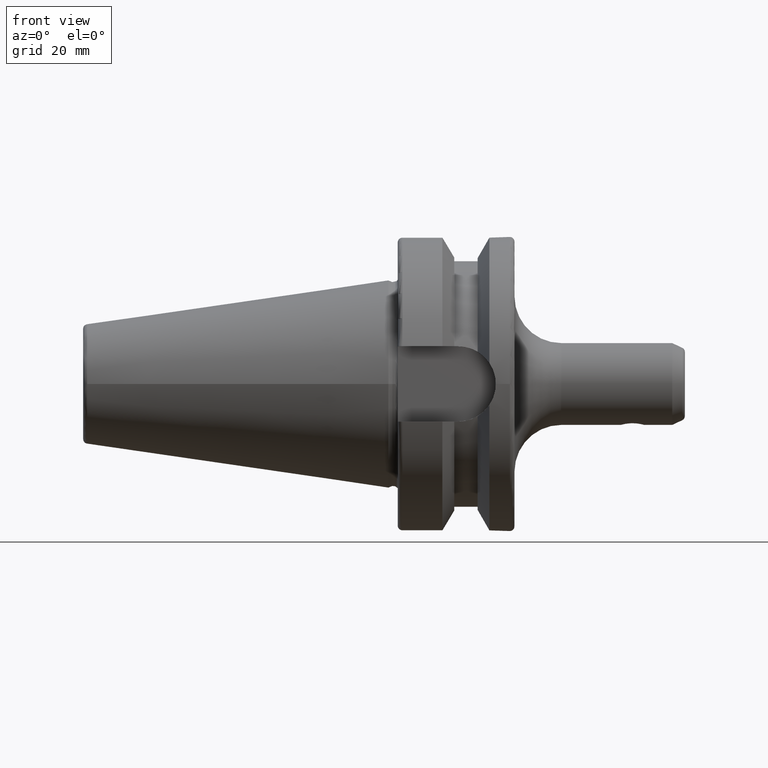
[diagram: clean part render]
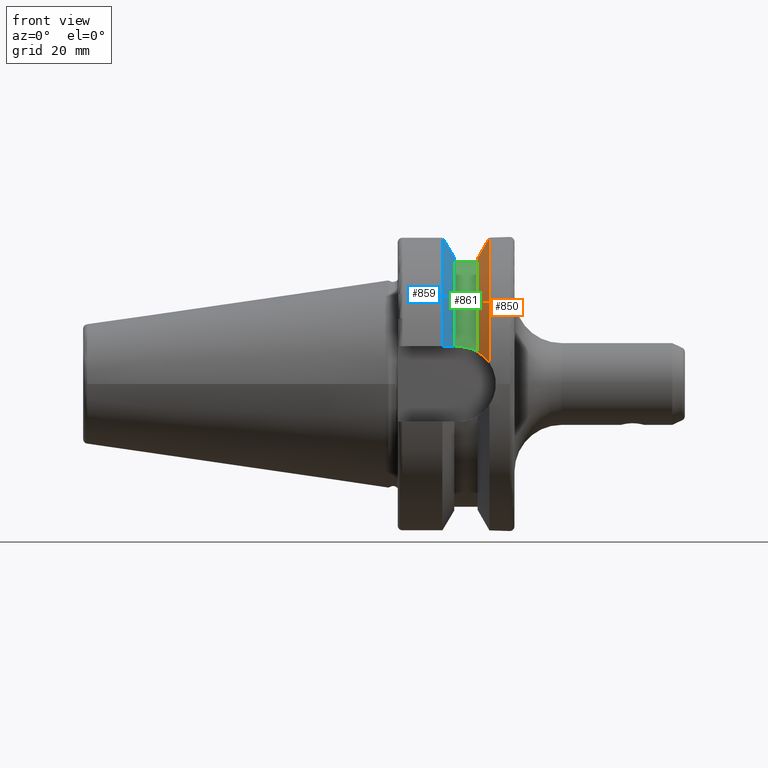
[diagram: same view with three faces highlighted in distinct colors, each labeled with its STEP entity id]
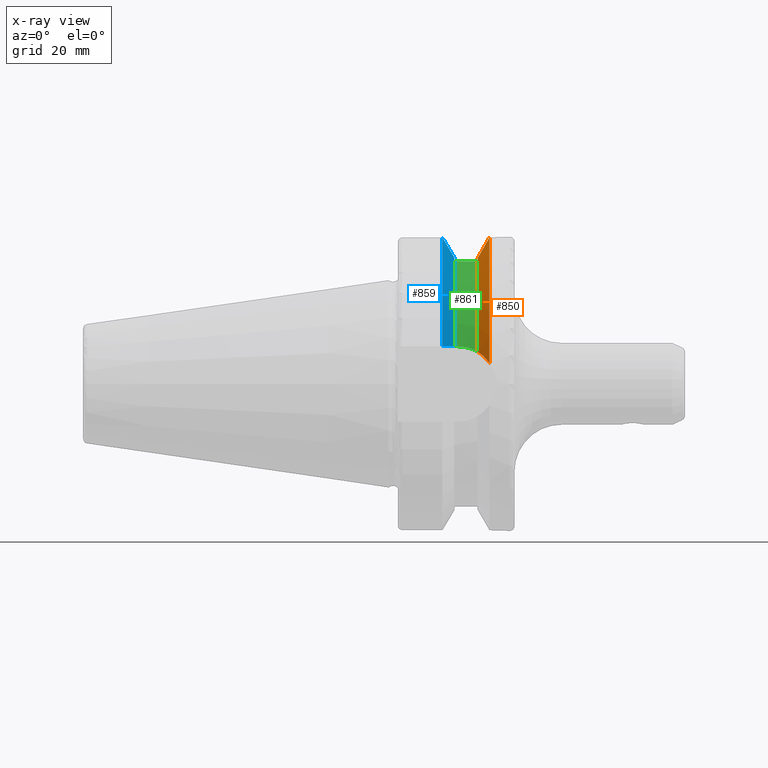
[diagram: x-ray of the same camera — body ghosted, the three highlighted faces saturated]
A machine part, front view with three faces highlighted in distinct colors.
The next image is the same camera in x-ray (body ghosted, the three faces saturated) — at least one of them is partly hidden behind the body in this view.
Their STEP definitions:

[orange] entity #850 — the highlighted conical surface has half-angle 60.125 deg.
#40=CONICAL_SURFACE('',#954,29.2970358274569,1.0493792127616);
#81=CIRCLE('',#933,31.5);
#91=CIRCLE('',#955,27.0940716549138);
#163=FACE_OUTER_BOUND('',#218,.T.);
#218=EDGE_LOOP('',(#728,#729,#730,#731));
#249=B_SPLINE_CURVE_WITH_KNOTS('',3,(#1570,#1571,#1572,#1573,#1574,#1575),
 .UNSPECIFIED.,.F.,.F.,(4,2,4),(1.46421027899563,1.54570476603974,2.04294020568402),
 .UNSPECIFIED.);
#258=B_SPLINE_CURVE_WITH_KNOTS('',3,(#1729,#1730,#1731,#1732,#1733,#1734),
 .UNSPECIFIED.,.F.,.F.,(4,2,4),(3.12975744792551,3.6269928875698,3.7084873746139),
 .UNSPECIFIED.);
#381=VERTEX_POINT('',#1562);
#382=VERTEX_POINT('',#1569);
#402=VERTEX_POINT('',#1649);
#415=VERTEX_POINT('',#1727);
#475=EDGE_CURVE('',#382,#381,#249,.T.);
#500=EDGE_CURVE('',#402,#381,#81,.T.);
#522=EDGE_CURVE('',#402,#415,#258,.T.);
#533=EDGE_CURVE('',#415,#382,#91,.T.);
#728=ORIENTED_EDGE('',*,*,#475,.T.);
#729=ORIENTED_EDGE('',*,*,#500,.F.);
#730=ORIENTED_EDGE('',*,*,#522,.T.);
#731=ORIENTED_EDGE('',*,*,#533,.T.);
#850=ADVANCED_FACE('',(#163),#40,.T.);
#933=AXIS2_PLACEMENT_3D('',#1660,#1108,#1109);
#954=AXIS2_PLACEMENT_3D('',#1766,#1165,#1166);
#955=AXIS2_PLACEMENT_3D('',#1767,#1167,#1168);
#1108=DIRECTION('center_axis',(1.,0.,0.));
#1109=DIRECTION('ref_axis',(0.,0.,-1.));
#1165=DIRECTION('center_axis',(1.,0.,0.));
#1166=DIRECTION('ref_axis',(0.,1.,0.));
#1167=DIRECTION('center_axis',(1.,0.,0.));
#1168=DIRECTION('ref_axis',(0.,0.,-1.));
#1562=CARTESIAN_POINT('',(21.6309636926618,-31.1782420264945,4.49079326370462));
#1569=CARTESIAN_POINT('',(19.1,-26.201311395455,6.89782574439221));
#1570=CARTESIAN_POINT('Ctrl Pts',(19.1,-26.201311395455,6.89782574439221));
#1571=CARTESIAN_POINT('Ctrl Pts',(19.2210929544554,-26.438473693351,6.82497151762397));
#1572=CARTESIAN_POINT('Ctrl Pts',(19.3406963650696,-26.6728819297427,6.74867108656043));
#1573=CARTESIAN_POINT('Ctrl Pts',(20.1784155384866,-28.3157123387483,6.1823136897693));
#1574=CARTESIAN_POINT('Ctrl Pts',(20.9728756148302,-29.8797957262938,5.46983244373119));
#1575=CARTESIAN_POINT('Ctrl Pts',(21.6309636926618,-31.1782420264945,4.49079326370462));
#1649=CARTESIAN_POINT('',(21.6309636926618,31.1782420264945,4.49079326370462));
#1660=CARTESIAN_POINT('Origin',(21.6309636926618,0.,0.));
#1727=CARTESIAN_POINT('',(19.1,26.201311395455,6.89782574439221));
#1729=CARTESIAN_POINT('Ctrl Pts',(21.6309636926618,31.1782420264945,4.49079326370461));
#1730=CARTESIAN_POINT('Ctrl Pts',(20.9728756148302,29.8797957262938,5.46983244373119));
#1731=CARTESIAN_POINT('Ctrl Pts',(20.1784155384866,28.3157123387483,6.1823136897693));
#1732=CARTESIAN_POINT('Ctrl Pts',(19.3406963650696,26.6728819297427,6.74867108656043));
#1733=CARTESIAN_POINT('Ctrl Pts',(19.2210929544554,26.438473693351,6.82497151762397));
#1734=CARTESIAN_POINT('Ctrl Pts',(19.1,26.201311395455,6.89782574439222));
#1766=CARTESIAN_POINT('Origin',(20.3654818463309,0.,0.));
#1767=CARTESIAN_POINT('Origin',(19.1,0.,0.));

[blue] entity #859 — the highlighted conical surface has half-angle 60.125 deg.
#15=(
BOUNDED_CURVE()
B_SPLINE_CURVE(2,(#1596,#1597,#1598),.UNSPECIFIED.,.F.,.F.)
B_SPLINE_CURVE_WITH_KNOTS((3,3),(0.,0.52358279083281),.UNSPECIFIED.)
CURVE()
GEOMETRIC_REPRESENTATION_ITEM()
RATIONAL_B_SPLINE_CURVE((1.,1.00307360097546,1.))
REPRESENTATION_ITEM('')
);
#18=(
BOUNDED_CURVE()
B_SPLINE_CURVE(2,(#1756,#1757,#1758),.UNSPECIFIED.,.F.,.F.)
B_SPLINE_CURVE_WITH_KNOTS((3,3),(0.,0.52358279083281),.UNSPECIFIED.)
CURVE()
GEOMETRIC_REPRESENTATION_ITEM()
RATIONAL_B_SPLINE_CURVE((1.,1.00307360097546,1.))
REPRESENTATION_ITEM('')
);
#43=CONICAL_SURFACE('',#977,29.2970358274569,1.0493792127616);
#104=CIRCLE('',#976,31.5000000000001);
#105=CIRCLE('',#978,27.0940716549138);
#172=FACE_OUTER_BOUND('',#228,.T.);
#228=EDGE_LOOP('',(#773,#774,#775,#776));
#388=VERTEX_POINT('',#1593);
#389=VERTEX_POINT('',#1595);
#420=VERTEX_POINT('',#1753);
#421=VERTEX_POINT('',#1755);
#483=EDGE_CURVE('',#389,#388,#15,.T.);
#528=EDGE_CURVE('',#421,#420,#18,.T.);
#549=EDGE_CURVE('',#420,#389,#104,.T.);
#550=EDGE_CURVE('',#421,#388,#105,.T.);
#773=ORIENTED_EDGE('',*,*,#483,.T.);
#774=ORIENTED_EDGE('',*,*,#550,.F.);
#775=ORIENTED_EDGE('',*,*,#528,.T.);
#776=ORIENTED_EDGE('',*,*,#549,.T.);
#859=ADVANCED_FACE('',(#172),#43,.T.);
#976=AXIS2_PLACEMENT_3D('',#1799,#1212,#1213);
#977=AXIS2_PLACEMENT_3D('',#1800,#1214,#1215);
#978=AXIS2_PLACEMENT_3D('',#1801,#1216,#1217);
#1212=DIRECTION('center_axis',(1.,0.,0.));
#1213=DIRECTION('ref_axis',(0.,0.,-1.));
#1214=DIRECTION('center_axis',(-1.,0.,0.));
#1215=DIRECTION('ref_axis',(0.,1.,0.));
#1216=DIRECTION('center_axis',(1.,0.,0.));
#1217=DIRECTION('ref_axis',(0.,0.,-1.));
#1593=CARTESIAN_POINT('',(14.1,-25.8705666509569,8.05));
#1595=CARTESIAN_POINT('',(11.5690363073382,-30.4540227227866,8.05));
#1596=CARTESIAN_POINT('Ctrl Pts',(11.5690363073382,-30.4540227227866,8.05));
#1597=CARTESIAN_POINT('Ctrl Pts',(12.9374976962938,-27.989970265181,8.05));
#1598=CARTESIAN_POINT('Ctrl Pts',(14.1,-25.8705666509569,8.05));
#1753=CARTESIAN_POINT('',(11.5690363073382,30.4540227227866,8.05));
#1755=CARTESIAN_POINT('',(14.1,25.8705666509569,8.05));
#1756=CARTESIAN_POINT('Ctrl Pts',(14.1,25.8705666509569,8.05));
#1757=CARTESIAN_POINT('Ctrl Pts',(12.9374976962938,27.989970265181,8.05));
#1758=CARTESIAN_POINT('Ctrl Pts',(11.5690363073382,30.4540227227866,8.05));
#1799=CARTESIAN_POINT('Origin',(11.5690363073382,0.,0.));
#1800=CARTESIAN_POINT('Origin',(12.8345181536691,0.,0.));
#1801=CARTESIAN_POINT('Origin',(14.1,0.,0.));

[green] entity #861 — the highlighted cylindrical surface (partial cylindrical patch) has radius 26.3 mm, axis along (1, 0, 0).
#106=CIRCLE('',#980,26.3);
#107=CIRCLE('',#982,26.3);
#129=CYLINDRICAL_SURFACE('',#981,26.3);
#174=FACE_OUTER_BOUND('',#230,.T.);
#230=EDGE_LOOP('',(#781,#782,#783,#784,#785,#786));
#250=B_SPLINE_CURVE_WITH_KNOTS('',3,(#1579,#1580,#1581,#1582,#1583,#1584),
 .UNSPECIFIED.,.F.,.F.,(4,2,4),(0.,0.305409847287967,0.418608358539112),
 .UNSPECIFIED.);
#257=B_SPLINE_CURVE_WITH_KNOTS('',3,(#1721,#1722,#1723,#1724,#1725,#1726),
 .UNSPECIFIED.,.F.,.F.,(4,2,4),(-0.418608358539113,-0.305409847287967,0.),
 .UNSPECIFIED.);
#275=LINE('',#1592,#323);
#294=LINE('',#1737,#342);
#323=VECTOR('',#1086,10.);
#342=VECTOR('',#1153,10.);
#383=VERTEX_POINT('',#1576);
#384=VERTEX_POINT('',#1578);
#387=VERTEX_POINT('',#1591);
#413=VERTEX_POINT('',#1718);
#414=VERTEX_POINT('',#1720);
#416=VERTEX_POINT('',#1736);
#477=EDGE_CURVE('',#384,#383,#250,.T.);
#481=EDGE_CURVE('',#387,#384,#275,.T.);
#520=EDGE_CURVE('',#414,#413,#257,.T.);
#523=EDGE_CURVE('',#413,#416,#294,.T.);
#551=EDGE_CURVE('',#416,#387,#106,.T.);
#552=EDGE_CURVE('',#414,#383,#107,.T.);
#781=ORIENTED_EDGE('',*,*,#477,.T.);
#782=ORIENTED_EDGE('',*,*,#552,.F.);
#783=ORIENTED_EDGE('',*,*,#520,.T.);
#784=ORIENTED_EDGE('',*,*,#523,.T.);
#785=ORIENTED_EDGE('',*,*,#551,.T.);
#786=ORIENTED_EDGE('',*,*,#481,.T.);
#861=ADVANCED_FACE('',(#174),#129,.T.);
#980=AXIS2_PLACEMENT_3D('',#1803,#1220,#1221);
#981=AXIS2_PLACEMENT_3D('',#1804,#1222,#1223);
#982=AXIS2_PLACEMENT_3D('',#1805,#1224,#1225);
#1086=DIRECTION('',(1.,0.,0.));
#1153=DIRECTION('',(-1.,0.,0.));
#1220=DIRECTION('center_axis',(1.,0.,0.));
#1221=DIRECTION('ref_axis',(0.,0.,-1.));
#1222=DIRECTION('center_axis',(1.,0.,0.));
#1223=DIRECTION('ref_axis',(0.,1.,0.));
#1224=DIRECTION('center_axis',(1.,0.,0.));
#1225=DIRECTION('ref_axis',(0.,0.,-1.));
#1576=CARTESIAN_POINT('',(19.1,-25.3793222919762,6.89782574439221));
#1578=CARTESIAN_POINT('',(14.95,-25.0377215417058,8.05));
#1579=CARTESIAN_POINT('Ctrl Pts',(14.95,-25.0377215417058,8.05));
#1580=CARTESIAN_POINT('Ctrl Pts',(15.9680328242932,-25.0377215417058,8.05));
#1581=CARTESIAN_POINT('Ctrl Pts',(17.0490724969254,-25.1063150193149,7.84520188991776));
#1582=CARTESIAN_POINT('Ctrl Pts',(18.4068260684762,-25.2726009715968,7.28086186600679));
#1583=CARTESIAN_POINT('Ctrl Pts',(18.7623374744972,-25.3241080721198,7.10097664045187));
#1584=CARTESIAN_POINT('Ctrl Pts',(19.1,-25.3793222919762,6.89782574439221));
#1591=CARTESIAN_POINT('',(14.1,-25.0377215417058,8.05));
#1592=CARTESIAN_POINT('',(16.6,-25.0377215417058,8.05));
#1718=CARTESIAN_POINT('',(14.95,25.0377215417058,8.05));
#1720=CARTESIAN_POINT('',(19.1,25.3793222919762,6.89782574439221));
#1721=CARTESIAN_POINT('Ctrl Pts',(19.1,25.3793222919762,6.89782574439221));
#1722=CARTESIAN_POINT('Ctrl Pts',(18.7623374744972,25.3241080721198,7.10097664045187));
#1723=CARTESIAN_POINT('Ctrl Pts',(18.4068260684762,25.2726009715968,7.28086186600679));
#1724=CARTESIAN_POINT('Ctrl Pts',(17.0490724969254,25.1063150193149,7.84520188991776));
#1725=CARTESIAN_POINT('Ctrl Pts',(15.9680328242932,25.0377215417058,8.05));
#1726=CARTESIAN_POINT('Ctrl Pts',(14.95,25.0377215417058,8.05));
#1736=CARTESIAN_POINT('',(14.1,25.0377215417058,8.05));
#1737=CARTESIAN_POINT('',(16.6,25.0377215417058,8.05));
#1803=CARTESIAN_POINT('Origin',(14.1,0.,0.));
#1804=CARTESIAN_POINT('Origin',(16.6,0.,0.));
#1805=CARTESIAN_POINT('Origin',(19.1,0.,0.));